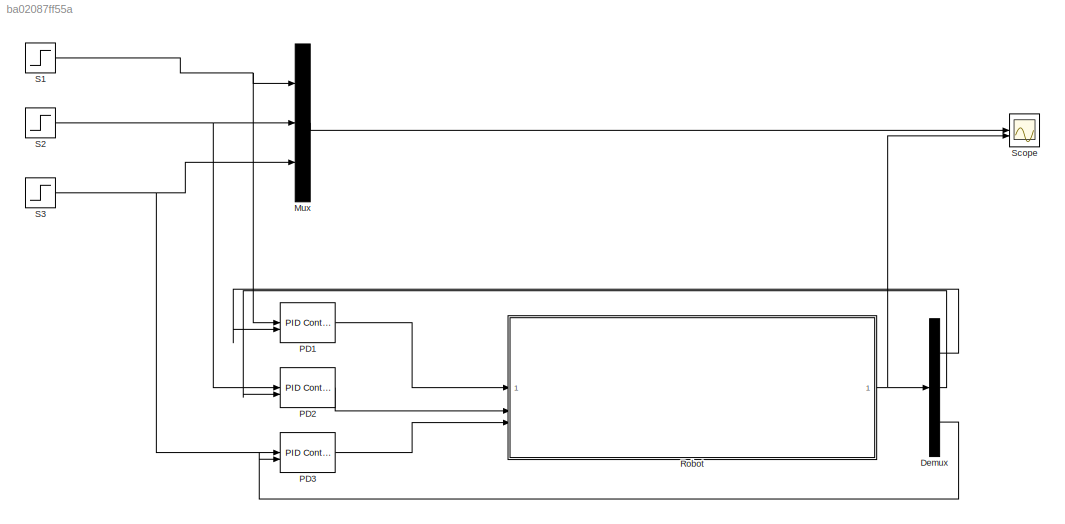
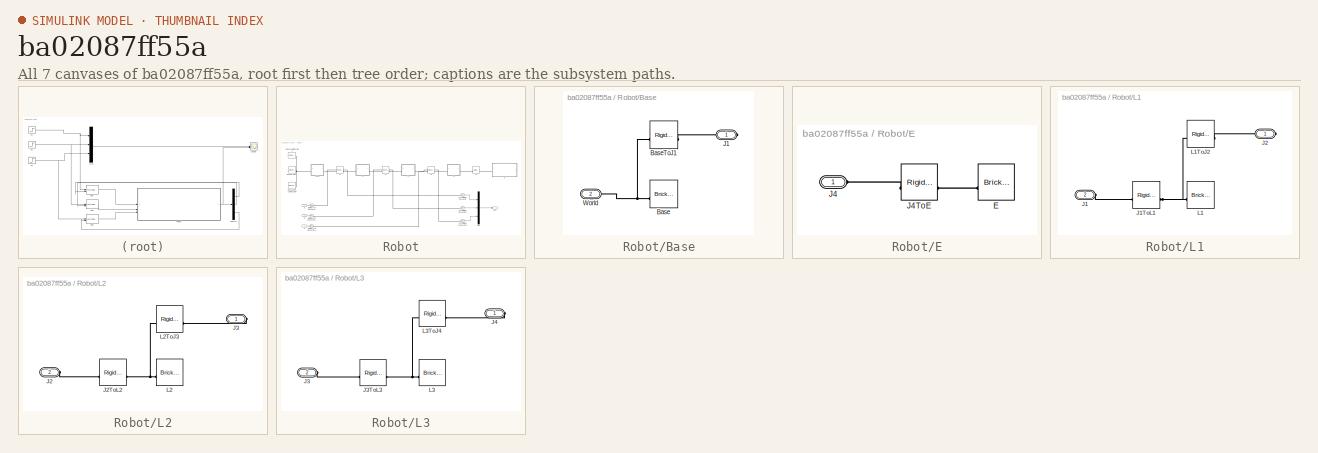
[diagram: thumbnail index - all 7 canvases of the model, root first then tree order]
MODEL slx_ba02087ff55a
KIND model
CONFIG AbsTol = auto
CONFIG EnableMultiTasking = off
CONFIG FixedStep = auto
CONFIG MaxStep = auto
CONFIG MinStep = auto
CONFIG RelTol = 1e-3
CONFIG SampleTimeConstraint = Unconstrained
CONFIG SolverName = VariableStepAuto
CONFIG StartTime = 0.0
CONFIG StopTime = 3
BLOCK [Demux] Demux
  Outputs = 3
BLOCK [Mux] Mux
  DisplayOption = bar
  Inputs = 3
BLOCK [Reference] PD1  REF=slpidlib/PID Controller (2DOF)
  LibrarySourceBlock = simulink/Continuous/PID Controller (2DOF)
  SourceBlock = slpidlib/PID Controller (2DOF)
  SourceType = PID 2dof
BLOCK [Reference] PD2  REF=slpidlib/PID Controller (2DOF)
  LibrarySourceBlock = simulink/Continuous/PID Controller (2DOF)
  SourceBlock = slpidlib/PID Controller (2DOF)
  SourceType = PID 2dof
BLOCK [Reference] PD3  REF=slpidlib/PID Controller (2DOF)
  LibrarySourceBlock = simulink/Continuous/PID Controller (2DOF)
  SourceBlock = slpidlib/PID Controller (2DOF)
  SourceType = PID 2dof
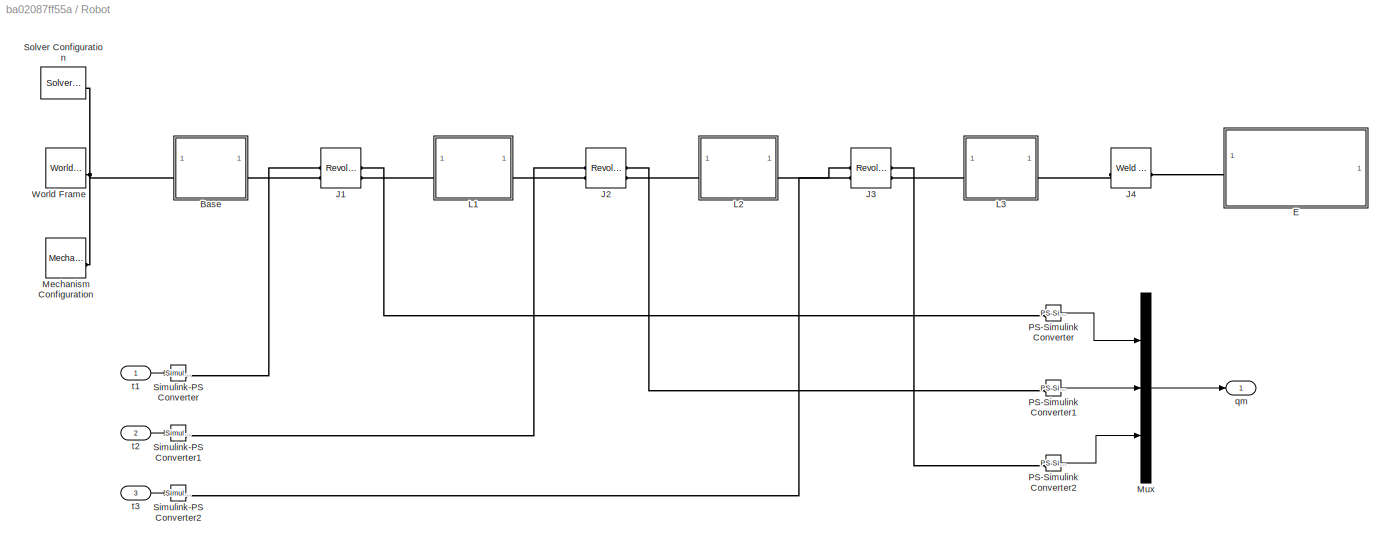
BLOCK [SubSystem] Robot
BLOCK [SubSystem] Robot/Base
BLOCK [Reference] Robot/Base/Base  REF=sm_lib/Body Elements/Brick Solid
  SourceBlock = sm_lib/Body Elements/Brick Solid
  SourceType = Brick Solid
BLOCK [Reference] Robot/Base/BaseToJ1  REF=sm_lib/Frames and
Transforms/Rigid
Transform
  SourceBlock = sm_lib/Frames and\nTransforms/Rigid\nTransform
  SourceType = Rigid\nTransform
BLOCK [PMIOPort] Robot/Base/J1
  Side = Right
BLOCK [PMIOPort] Robot/Base/World
  Port = 2
  Side = Left
BLOCK [SubSystem] Robot/E
BLOCK [Reference] Robot/E/E  REF=sm_lib/Body Elements/Brick Solid
  SourceBlock = sm_lib/Body Elements/Brick Solid
  SourceType = Brick Solid
BLOCK [PMIOPort] Robot/E/J4
  Side = Left
BLOCK [Reference] Robot/E/J4ToE  REF=sm_lib/Frames and
Transforms/Rigid
Transform
  SourceBlock = sm_lib/Frames and\nTransforms/Rigid\nTransform
  SourceType = Rigid\nTransform
BLOCK [Reference] Robot/J1  REF=sm_lib/Joints/Revolute Joint
  SourceBlock = sm_lib/Joints/Revolute Joint
  SourceType = Revolute Joint
BLOCK [Reference] Robot/J2  REF=sm_lib/Joints/Revolute Joint
  SourceBlock = sm_lib/Joints/Revolute Joint
  SourceType = Revolute Joint
BLOCK [Reference] Robot/J3  REF=sm_lib/Joints/Revolute Joint
  SourceBlock = sm_lib/Joints/Revolute Joint
  SourceType = Revolute Joint
BLOCK [Reference] Robot/J4  REF=sm_lib/Joints/Weld Joint
  SourceBlock = sm_lib/Joints/Weld Joint
  SourceType = Weld Joint
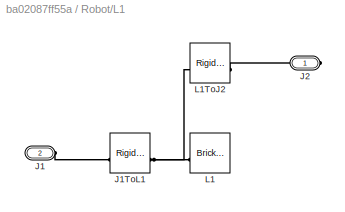
BLOCK [SubSystem] Robot/L1
BLOCK [PMIOPort] Robot/L1/J1
  Port = 2
  Side = Left
BLOCK [Reference] Robot/L1/J1ToL1  REF=sm_lib/Frames and
Transforms/Rigid
Transform
  SourceBlock = sm_lib/Frames and\nTransforms/Rigid\nTransform
  SourceType = Rigid\nTransform
BLOCK [PMIOPort] Robot/L1/J2
  Side = Right
BLOCK [Reference] Robot/L1/L1  REF=sm_lib/Body Elements/Brick Solid
  SourceBlock = sm_lib/Body Elements/Brick Solid
  SourceType = Brick Solid
BLOCK [Reference] Robot/L1/L1ToJ2  REF=sm_lib/Frames and
Transforms/Rigid
Transform
  SourceBlock = sm_lib/Frames and\nTransforms/Rigid\nTransform
  SourceType = Rigid\nTransform
BLOCK [SubSystem] Robot/L2
BLOCK [PMIOPort] Robot/L2/J2
  Port = 2
  Side = Left
BLOCK [Reference] Robot/L2/J2ToL2  REF=sm_lib/Frames and
Transforms/Rigid
Transform
  SourceBlock = sm_lib/Frames and\nTransforms/Rigid\nTransform
  SourceType = Rigid\nTransform
BLOCK [PMIOPort] Robot/L2/J3
  Side = Right
BLOCK [Reference] Robot/L2/L2  REF=sm_lib/Body Elements/Brick Solid
  SourceBlock = sm_lib/Body Elements/Brick Solid
  SourceType = Brick Solid
BLOCK [Reference] Robot/L2/L2ToJ3  REF=sm_lib/Frames and
Transforms/Rigid
Transform
  SourceBlock = sm_lib/Frames and\nTransforms/Rigid\nTransform
  SourceType = Rigid\nTransform
BLOCK [SubSystem] Robot/L3
BLOCK [PMIOPort] Robot/L3/J3
  Port = 2
  Side = Left
BLOCK [Reference] Robot/L3/J3ToL3  REF=sm_lib/Frames and
Transforms/Rigid
Transform
  SourceBlock = sm_lib/Frames and\nTransforms/Rigid\nTransform
  SourceType = Rigid\nTransform
BLOCK [PMIOPort] Robot/L3/J4
  Side = Right
BLOCK [Reference] Robot/L3/L3  REF=sm_lib/Body Elements/Brick Solid
  SourceBlock = sm_lib/Body Elements/Brick Solid
  SourceType = Brick Solid
BLOCK [Reference] Robot/L3/L3ToJ4  REF=sm_lib/Frames and
Transforms/Rigid
Transform
  SourceBlock = sm_lib/Frames and\nTransforms/Rigid\nTransform
  SourceType = Rigid\nTransform
BLOCK [Reference] Robot/Mechanism Configuration  REF=sm_lib/Utilities/Mechanism
Configuration
  SourceBlock = sm_lib/Utilities/Mechanism\nConfiguration
  SourceType = Mechanism\nConfiguration
BLOCK [Mux] Robot/Mux
  DisplayOption = bar
  Inputs = 3
BLOCK [Reference] Robot/PS-Simulink Converter  REF=nesl_utility/PS-Simulink
Converter
  SourceBlock = nesl_utility/PS-Simulink\nConverter
  SourceType = PS-Simulink\nConverter
BLOCK [Reference] Robot/PS-Simulink Converter1  REF=nesl_utility/PS-Simulink
Converter
  SourceBlock = nesl_utility/PS-Simulink\nConverter
  SourceType = PS-Simulink\nConverter
BLOCK [Reference] Robot/PS-Simulink Converter2  REF=nesl_utility/PS-Simulink
Converter
  SourceBlock = nesl_utility/PS-Simulink\nConverter
  SourceType = PS-Simulink\nConverter
BLOCK [Reference] Robot/Simulink-PS Converter  REF=nesl_utility/Simulink-PS
Converter
  SourceBlock = nesl_utility/Simulink-PS\nConverter
  SourceType = Simulink-PS\nConverter
BLOCK [Reference] Robot/Simulink-PS Converter1  REF=nesl_utility/Simulink-PS
Converter
  SourceBlock = nesl_utility/Simulink-PS\nConverter
  SourceType = Simulink-PS\nConverter
BLOCK [Reference] Robot/Simulink-PS Converter2  REF=nesl_utility/Simulink-PS
Converter
  SourceBlock = nesl_utility/Simulink-PS\nConverter
  SourceType = Simulink-PS\nConverter
BLOCK [Reference] Robot/Solver Configuration  REF=nesl_utility/Solver
Configuration
  SourceBlock = nesl_utility/Solver\nConfiguration
  SourceType = Solver\nConfiguration
BLOCK [Reference] Robot/World Frame  REF=sm_lib/Frames and
Transforms/World Frame
  SourceBlock = sm_lib/Frames and\nTransforms/World Frame
  SourceType = World Frame
BLOCK [Outport] Robot/qm
BLOCK [Inport] Robot/t1
BLOCK [Inport] Robot/t2
  Port = 2
BLOCK [Inport] Robot/t3
  Port = 3
BLOCK [Step] S1
  After = 0.2
  SampleTime = 0
  Time = 0.5
BLOCK [Step] S2
  After = 0.4
  SampleTime = 0
  Time = 1.5
BLOCK [Step] S3
  After = 0.3
  SampleTime = 0
  Time = 2
BLOCK [Scope] Scope
  Floating = off
  NumInputPorts = 2
  ScopeSpecificationString = Simulink.scopes.TimeScopeBlockCfg('CurrentConfiguration', extmgr.ConfigurationSet(extmgr.Configuration('Core','General UI',true),extmgr.Configuration('Core','Source UI',true),extmgr.Configuration('Sources','WiredSimulink',true),extmgr.Configuration('Visuals','Time Domain',true,'SerializedDisplays',{struct('MinYLimReal','-0.05','MaxYLimReal','0.45','YLabelReal','','MinYLimMag','0.00000','MaxYLimMag...<+2041ch>
LINE Demux:1 -> PD1:2
LINE Demux:2 -> PD2:2
LINE Demux:3 -> PD3:2
LINE Mux:1 -> Scope:1
LINE PD1:1 -> Robot:1
LINE PD2:1 -> Robot:2
LINE PD3:1 -> Robot:3
LINE Robot/Mux:1 -> Robot/qm:1
LINE Robot/PS-Simulink Converter1:1 -> Robot/Mux:2
LINE Robot/PS-Simulink Converter2:1 -> Robot/Mux:3
LINE Robot/PS-Simulink Converter:1 -> Robot/Mux:1
LINE Robot/t1:1 -> Robot/Simulink-PS Converter:1
LINE Robot/t2:1 -> Robot/Simulink-PS Converter1:1
LINE Robot/t3:1 -> Robot/Simulink-PS Converter2:1
NET Robot:1 -> Demux:1, Scope:2
NET S1:1 -> Mux:1, PD1:1
NET S2:1 -> Mux:2, PD2:1
NET S3:1 -> Mux:3, PD3:1
PNET net1: Robot/Base/Base:RConn1 -- Robot/Base/BaseToJ1:LConn1 -- Robot/Base/World:RConn1
PLINE Robot/Base/BaseToJ1:RConn1 -- Robot/Base/J1:RConn1
PNET net2: Robot/Base:LConn1 -- Robot/Mechanism Configuration:RConn1 -- Robot/Solver Configuration:RConn1 -- Robot/World Frame:RConn1
PLINE Robot/Base:RConn1 -- Robot/J1:LConn1
PLINE Robot/E/E:RConn1 -- Robot/E/J4ToE:RConn1
PLINE Robot/E/J4:RConn1 -- Robot/E/J4ToE:LConn1
PLINE Robot/E:LConn1 -- Robot/J4:RConn1
PLINE Robot/J1:LConn2 -- Robot/Simulink-PS Converter:RConn1
PLINE Robot/J1:RConn1 -- Robot/L1:LConn1
PLINE Robot/J1:RConn2 -- Robot/PS-Simulink Converter:LConn1
PLINE Robot/J2:LConn1 -- Robot/L1:RConn1
PLINE Robot/J2:LConn2 -- Robot/Simulink-PS Converter1:RConn1
PLINE Robot/J2:RConn1 -- Robot/L2:LConn1
PLINE Robot/J2:RConn2 -- Robot/PS-Simulink Converter1:LConn1
PLINE Robot/J3:LConn1 -- Robot/L2:RConn1
PLINE Robot/J3:LConn2 -- Robot/Simulink-PS Converter2:RConn1
PLINE Robot/J3:RConn1 -- Robot/L3:LConn1
PLINE Robot/J3:RConn2 -- Robot/PS-Simulink Converter2:LConn1
PLINE Robot/J4:LConn1 -- Robot/L3:RConn1
PLINE Robot/L1/J1:RConn1 -- Robot/L1/J1ToL1:LConn1
PNET net3: Robot/L1/J1ToL1:RConn1 -- Robot/L1/L1:RConn1 -- Robot/L1/L1ToJ2:LConn1
PLINE Robot/L1/J2:RConn1 -- Robot/L1/L1ToJ2:RConn1
PLINE Robot/L2/J2:RConn1 -- Robot/L2/J2ToL2:LConn1
PNET net4: Robot/L2/J2ToL2:RConn1 -- Robot/L2/L2:RConn1 -- Robot/L2/L2ToJ3:LConn1
PLINE Robot/L2/J3:RConn1 -- Robot/L2/L2ToJ3:RConn1
PLINE Robot/L3/J3:RConn1 -- Robot/L3/J3ToL3:LConn1
PNET net5: Robot/L3/J3ToL3:RConn1 -- Robot/L3/L3:RConn1 -- Robot/L3/L3ToJ4:LConn1
PLINE Robot/L3/J4:RConn1 -- Robot/L3/L3ToJ4:RConn1
note: NET lines group one-source signal fan-out (src -> all destinations, sorted); 1:1 wires keep LINE; PNET lines group multi-terminal physical nets as a canonical sorted terminal list (undirected conserving connections); 2-terminal nets keep the pairwise PLINE form
